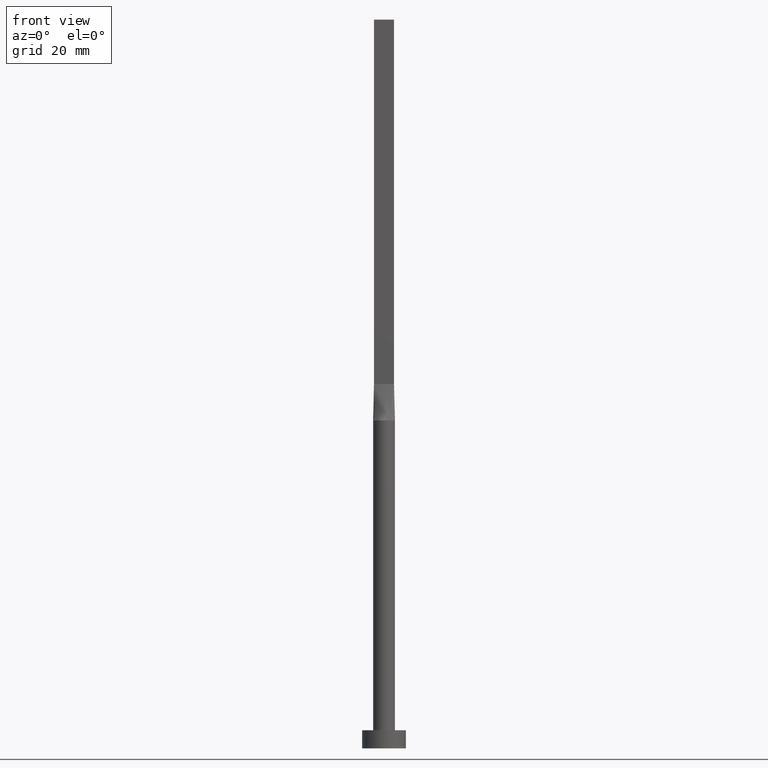
[diagram: clean part render]
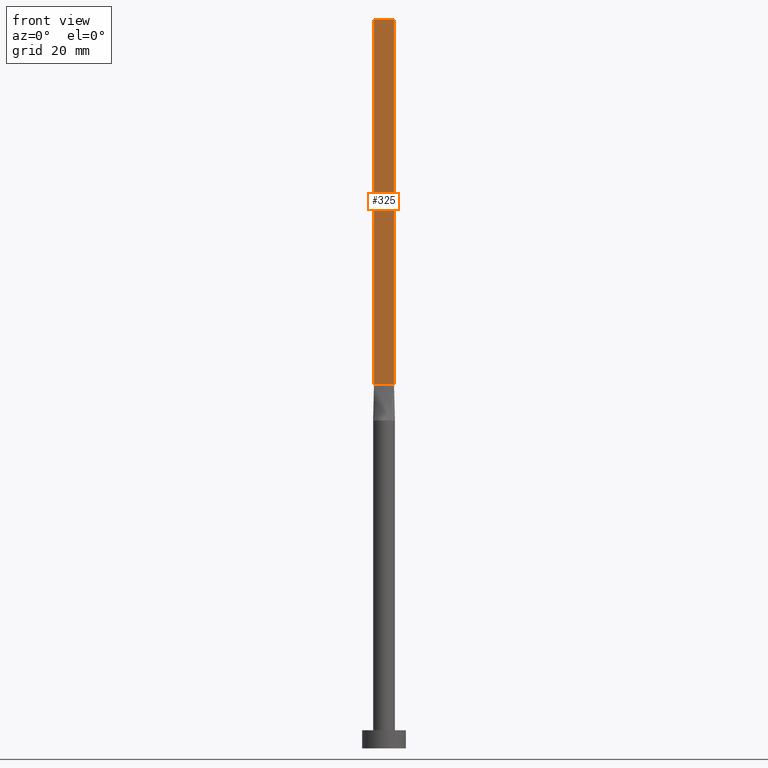
[diagram: same view with one face highlighted and labeled with its STEP entity id]
A machine part, front view. The second image highlights one B-rep face of the part: STEP entity #325.
In plain terms, the highlighted planar face has unit normal (0, 1, -0).
Its self-contained STEP definition (entity closure, byte-faithful):
#9 = VECTOR ( 'NONE', #328, 1000.000000000000000 ) ;
#17 = VECTOR ( 'NONE', #195, 1000.000000000000000 ) ;
#31 = CARTESIAN_POINT ( 'NONE',  ( -2.750000000000000000, -0.5999999999999994227, 200.0000000000000000 ) ) ;
#37 = CARTESIAN_POINT ( 'NONE',  ( -2.750000000000000000, -0.5999999999999994227, 200.0000000000000000 ) ) ;
#40 = EDGE_CURVE ( 'NONE', #101, #460, #168, .T. ) ;
#68 = VERTEX_POINT ( 'NONE', #300 ) ;
#101 = VERTEX_POINT ( 'NONE', #31 ) ;
#124 = CARTESIAN_POINT ( 'NONE',  ( -2.750000000000000000, -0.5999999999999994227, 200.0000000000000000 ) ) ;
#132 = DIRECTION ( 'NONE',  ( 1.000000000000000000, -5.913830031739115543E-17, 0.000000000000000000 ) ) ;
#136 = EDGE_CURVE ( 'NONE', #221, #68, #335, .T. ) ;
#142 = ORIENTED_EDGE ( 'NONE', *, *, #379, .F. ) ;
#152 = CARTESIAN_POINT ( 'NONE',  ( -2.750000000000000000, -0.5999999999999994227, 100.0000000000000000 ) ) ;
#158 = DIRECTION ( 'NONE',  ( -1.000000000000000000, 5.913830031739115543E-17, 0.000000000000000000 ) ) ;
#168 = LINE ( 'NONE', #124, #458 ) ;
#188 = CARTESIAN_POINT ( 'NONE',  ( -2.750000000000000000, -0.5999999999999994227, 100.0000000000000000 ) ) ;
#195 = DIRECTION ( 'NONE',  ( -0.000000000000000000, -0.000000000000000000, -1.000000000000000000 ) ) ;
#204 = FACE_OUTER_BOUND ( 'NONE', #248, .T. ) ;
#221 = VERTEX_POINT ( 'NONE', #557 ) ;
#226 = LINE ( 'NONE', #313, #412 ) ;
#229 = LINE ( 'NONE', #188, #9 ) ;
#240 = ORIENTED_EDGE ( 'NONE', *, *, #136, .F. ) ;
#248 = EDGE_LOOP ( 'NONE', ( #406, #240, #142, #564 ) ) ;
#300 = CARTESIAN_POINT ( 'NONE',  ( 2.750000000000000000, -0.5999999999999997558, 100.0000000000000000 ) ) ;
#306 = AXIS2_PLACEMENT_3D ( 'NONE', #37, #567, #158 ) ;
#313 = CARTESIAN_POINT ( 'NONE',  ( -2.750000000000000000, -0.5999999999999994227, 200.0000000000000000 ) ) ;
#325 = ADVANCED_FACE ( 'NONE', ( #204 ), #424, .F. ) ;
#328 = DIRECTION ( 'NONE',  ( 1.000000000000000000, -5.913830031739115543E-17, 0.000000000000000000 ) ) ;
#335 = LINE ( 'NONE', #457, #17 ) ;
#379 = EDGE_CURVE ( 'NONE', #101, #221, #226, .T. ) ;
#406 = ORIENTED_EDGE ( 'NONE', *, *, #576, .T. ) ;
#412 = VECTOR ( 'NONE', #132, 1000.000000000000000 ) ;
#424 = PLANE ( 'NONE',  #306 ) ;
#436 = DIRECTION ( 'NONE',  ( -0.000000000000000000, -0.000000000000000000, -1.000000000000000000 ) ) ;
#457 = CARTESIAN_POINT ( 'NONE',  ( 2.750000000000000000, -0.5999999999999997558, 200.0000000000000000 ) ) ;
#458 = VECTOR ( 'NONE', #436, 1000.000000000000000 ) ;
#460 = VERTEX_POINT ( 'NONE', #152 ) ;
#557 = CARTESIAN_POINT ( 'NONE',  ( 2.750000000000000000, -0.5999999999999997558, 200.0000000000000000 ) ) ;
#564 = ORIENTED_EDGE ( 'NONE', *, *, #40, .T. ) ;
#567 = DIRECTION ( 'NONE',  ( 5.913830031739115543E-17, 1.000000000000000000, -0.000000000000000000 ) ) ;
#576 = EDGE_CURVE ( 'NONE', #460, #68, #229, .T. ) ;